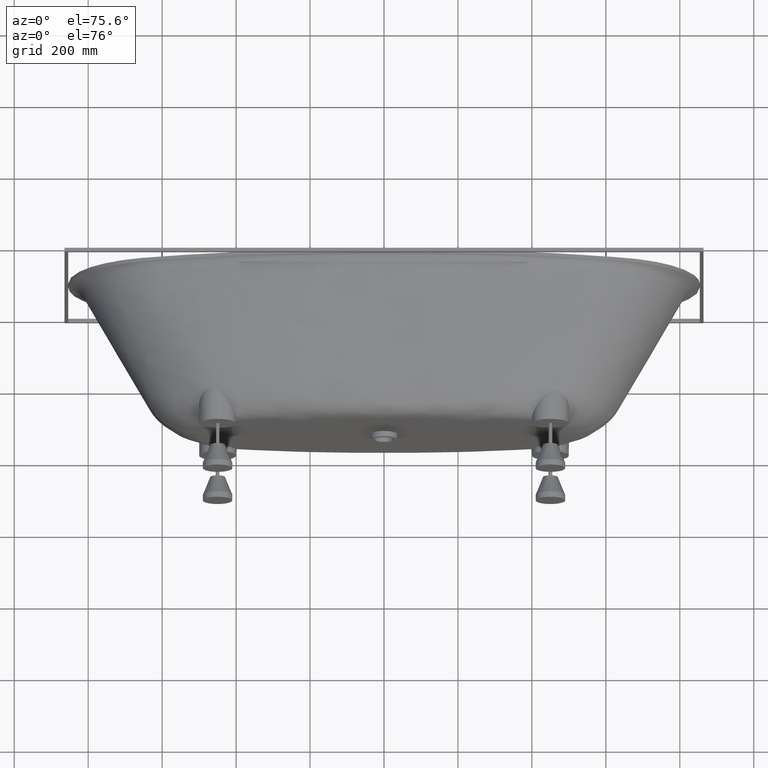
[diagram: clean part render]
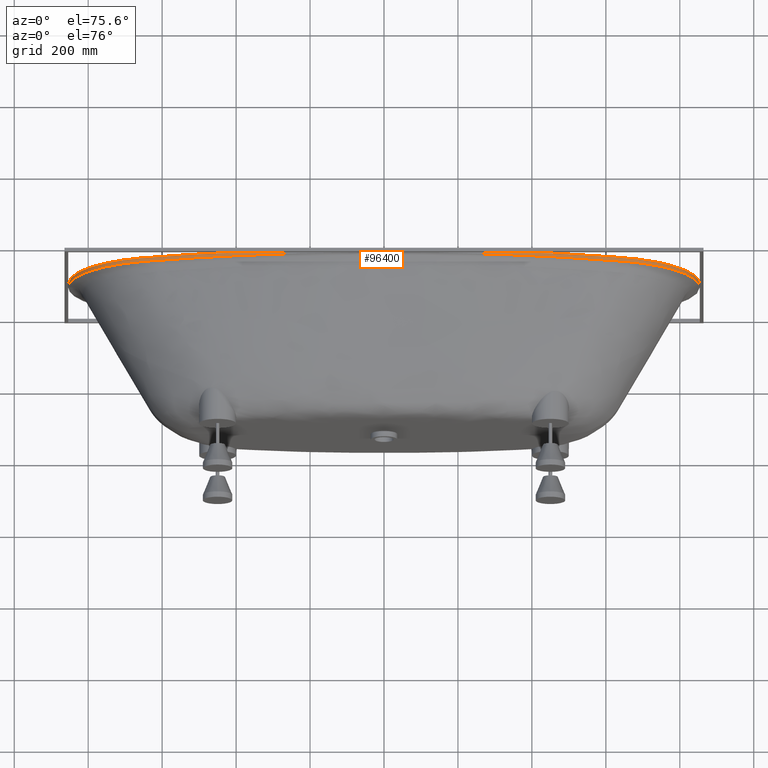
[diagram: same view with one face highlighted and labeled with its STEP entity id]
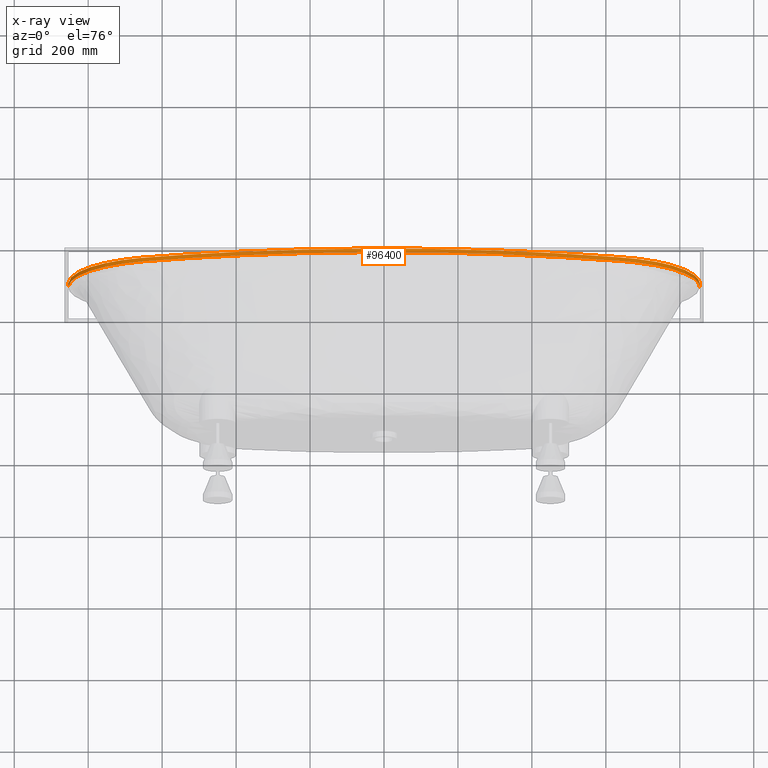
[diagram: x-ray of the same camera — body ghosted, the highlighted face saturated]
A machine part, auxiliary view. The second image highlights one B-rep face of the part: STEP entity #96400.
The next image is the same camera in x-ray: the body ghosted, the highlighted face saturated — about 0% of this face is hidden behind the body in this view.
In plain terms, the highlighted face is a freeform B-spline surface patch.
Its self-contained STEP definition (entity closure, byte-faithful):
#432 = CARTESIAN_POINT ( 'NONE',  ( -829.7678665111801593, -10.00000000000000178, 123.1756036885558672 ) ) ;
#1050 = CARTESIAN_POINT ( 'NONE',  ( -633.0025208500618419, 0.0000000000000000000, 287.8618600178022575 ) ) ;
#1668 = CARTESIAN_POINT ( 'NONE',  ( 638.4967132186570780, -10.00000000000000178, 286.1919980705547459 ) ) ;
#2276 = DIRECTION ( 'NONE',  ( -1.224646799147365533E-16, 1.000000000000000000, 0.0000000000000000000 ) ) ;
#2282 = CARTESIAN_POINT ( 'NONE',  ( 849.4592916242793308, 0.0000000000000000000, 63.27983597649888736 ) ) ;
#3675 = CARTESIAN_POINT ( 'NONE',  ( -853.9999999999996589, -10.00000000000000178, 1.283695372222837250E-13 ) ) ;
#3943 = EDGE_CURVE ( 'NONE', #59817, #64188, #13837, .T. ) ;
#4299 = CARTESIAN_POINT ( 'NONE',  ( -824.0133467514558561, -9.999999999999998224, 130.3186733665728241 ) ) ;
#4367 = CARTESIAN_POINT ( 'NONE',  ( 849.3192483419004475, -10.00000000000000355, 53.67561906219695089 ) ) ;
#4909 = CARTESIAN_POINT ( 'NONE',  ( -756.3328533345642199, -10.00000000000000178, 220.5006646839053701 ) ) ;
#4948 = EDGE_CURVE ( 'NONE', #54884, #120626, #36324, .T. ) ;
#5533 = CARTESIAN_POINT ( 'NONE',  ( -671.3405410933002031, -9.999999999999998224, 274.5823532284132966 ) ) ;
#5603 = CARTESIAN_POINT ( 'NONE',  ( -638.4967132186552590, 0.0000000000000000000, 286.1919980705559965 ) ) ;
#6155 = CARTESIAN_POINT ( 'NONE',  ( -551.3811023531291085, -10.00000000000000000, 311.2649073878256445 ) ) ;
#6224 = CARTESIAN_POINT ( 'NONE',  ( 829.7678665111789087, 0.0000000000000000000, 123.1756036885556966 ) ) ;
#6776 = CARTESIAN_POINT ( 'NONE',  ( -83.84258404370987705, -10.00000000000000000, 380.3089782417210358 ) ) ;
#7390 = CARTESIAN_POINT ( 'NONE',  ( 484.4366450638592596, -10.00000000000000178, 327.2009377068486629 ) ) ;
#8011 = CARTESIAN_POINT ( 'NONE',  ( 649.9452744862729787, -10.00000000000000178, 282.5973926800733693 ) ) ;
#8634 = CARTESIAN_POINT ( 'NONE',  ( 740.5908728704747546, -10.00000000000000178, 233.8703838492806710 ) ) ;
#9877 = CARTESIAN_POINT ( 'NONE',  ( -853.9999999999996589, 0.0000000000000000000, 21.21315664807787016 ) ) ;
#10487 = CARTESIAN_POINT ( 'NONE',  ( -638.4967132186552590, -10.00000000000000178, 286.1919980705559965 ) ) ;
#11101 = CARTESIAN_POINT ( 'NONE',  ( 533.5103789785432582, 0.0000000000000000000, 317.6734104676295374 ) ) ;
#11719 = CARTESIAN_POINT ( 'NONE',  ( 829.7678665111789087, -10.00000000000000178, 123.1756036885556966 ) ) ;
#13737 = CARTESIAN_POINT ( 'NONE',  ( -841.7249123074137742, -10.00000000000000000, 85.29871035570963045 ) ) ;
#13807 = CARTESIAN_POINT ( 'NONE',  ( 844.4757024791142612, -10.00000000000000178, 74.75688911045619989 ) ) ;
#13837 = B_SPLINE_CURVE_WITH_KNOTS ( 'NONE', 3,
 ( #3675, #42048, #80436, #118823, #32611, #70995, #109400, #23175, #61559, #99949, #13737, #52117, #90508, #4299, #42666, #81053, #119442, #33230, #71618, #110020, #23796, #62178, #100566, #14356, #52732, #91122, #4909, #43281, #81668, #120056, #33847, #72234, #110635, #24409, #62791, #101181, #14976, #53352, #91744, #5533, #43905, #82290, #120674, #34466, #72851, #111252, #25030, #63412, #101802, #15601, #53982, #92365, #6155, #44531, #82911, #121294, #35087, #73471, #111873, #25650, #64033, #102422, #16217, #54599, #92985, #6776, #45156, #83532, #121913, #35704, #74084, #112486, #26262, #64645, #103039, #16831, #55215, #93600, #7390, #45771, #84148, #122527, #36318, #74698, #113099, #26879, #65264, #103654, #17451, #55832, #94220, #8011, #46391, #84771, #123148, #36942, #75326, #113724, #27504, #65892, #104279, #18075, #56456, #94842, #8634, #47013, #85396, #123776, #37566, #75950, #114348, #28128, #42119, #80508, #118894, #32682, #71067, #109471, #23245, #61630, #100019, #13807, #52186, #90578, #4367, #42735, #81123, #119510, #33299, #71689, #110089, #23864, #62245, #100635, #14426, #52801, #91194 ),
 .UNSPECIFIED., .F., .F.,
 ( 4, 2, 2, 2, 2, 2, 2, 2, 2, 2, 2, 2, 2, 2, 2, 2, 2, 2, 2, 2, 2, 2, 2, 2, 2, 2, 2, 2, 2, 2, 2, 2, 2, 2, 2, 2, 2, 2, 2, 1, 2, 2, 2, 2, 2, 2, 2, 2, 2, 2, 2, 2, 2, 2, 2, 2, 2, 2, 2, 2, 2, 2, 2, 2, 2, 2, 1, 1, 2, 4 ),
 ( 2.060398323041897406, 2.092691653314469047, 2.108838318450755089, 2.116911651018897889, 2.124984983587040688, 2.157278313859612329, 2.189571644132183970, 2.205718309268469568, 2.213791641836612811, 2.221864974404755610, 2.254158304677326807, 2.286451634949898004, 2.302598300086183603, 2.310671632654326402, 2.314708298938398023, 2.318744965222469645, 2.351038295495042174, 2.383331625767614703, 2.399478290903901190, 2.407551623472043989, 2.411588289756115611, 2.415624956040187232, 2.431771621176473719, 2.435808287460544896, 2.439844953744616074, 2.447918286312758873, 2.577091607403034779, 2.706264928493310684, 2.770851589038449081, 2.803144919311018057, 2.819291584447302768, 2.835438249583587478, 2.964611570673864271, 3.093784891764141065, 3.222958212854418303, 3.352131533944695541, 3.481304855034972334, 3.545891515580111175, 3.562038180716395885, 3.578184845852680596, 3.610478176125250016, 3.675064836670388857, 3.707358166942958722, 3.739651497215528586, 3.747724829783670941, 3.751761496067741675, 3.755798162351812852, 3.771944827488096674, 3.804238157760664762, 3.836531488033232851, 3.840568154317304028, 3.844604820601374762, 3.852678153169517117, 3.868824818305801827, 3.901118148578371247, 3.933411478850940668, 3.949558143987224490, 3.965704809123509200, 3.997998139396078621, 4.030291469668647153, 4.046438134804931863, 4.054511467373074218, 4.062584799941216573, 4.094878130213785994, 4.111024795350069816, 4.119098127918212171, 4.123134794202282905, 4.125153127344319159, 4.126162293915337287, 4.127171460486354526 ),
 .UNSPECIFIED. ) ;
#14307 = ORIENTED_EDGE ( 'NONE', *, *, #113536, .T. ) ;
#14356 = CARTESIAN_POINT ( 'NONE',  ( -768.0861832508102225, -10.00000000000000355, 209.2830899371780617 ) ) ;
#14426 = CARTESIAN_POINT ( 'NONE',  ( 853.9994191610730923, -9.999999999999998224, 0.6785288951267411939 ) ) ;
#14976 = CARTESIAN_POINT ( 'NONE',  ( -684.9558156179605248, -9.999999999999998224, 268.5227673448515020 ) ) ;
#15046 = CARTESIAN_POINT ( 'NONE',  ( -754.5583896210019930, 0.0000000000000000000, 225.0596960864241680 ) ) ;
#15601 = CARTESIAN_POINT ( 'NONE',  ( -639.4290326399166133, -9.999999999999998224, 285.9009224156806113 ) ) ;
#15668 = CARTESIAN_POINT ( 'NONE',  ( 703.1205459587362157, 0.0000000000000000000, 261.5206814293603088 ) ) ;
#16217 = CARTESIAN_POINT ( 'NONE',  ( -260.3876478592120520, -10.00000000000000000, 365.9441531601618749 ) ) ;
#16831 = CARTESIAN_POINT ( 'NONE',  ( 452.7626882172202158, -10.00000000000000178, 334.1107029292886637 ) ) ;
#17451 = CARTESIAN_POINT ( 'NONE',  ( 644.8119053767234163, -10.00000000000000178, 284.2456470697084114 ) ) ;
#18075 = CARTESIAN_POINT ( 'NONE',  ( 728.6557804213141480, -10.00000000000000178, 242.7449870199710915 ) ) ;
#19318 = CARTESIAN_POINT ( 'NONE',  ( -853.9999999999996589, -10.00000000000000178, 1.283695372222837250E-13 ) ) ;
#19931 = CARTESIAN_POINT ( 'NONE',  ( -703.1205459587365567, 0.0000000000000000000, 261.5206814293602520 ) ) ;
#20544 = CARTESIAN_POINT ( 'NONE',  ( 325.7436218526086122, -10.00000000000000178, 364.9166080882957317 ) ) ;
#21155 = CARTESIAN_POINT ( 'NONE',  ( 754.5583896210017656, 0.0000000000000000000, 225.0596960864240259 ) ) ;
#23175 = CARTESIAN_POINT ( 'NONE',  ( -848.0995424238359419, -10.00000000000000000, 59.03803136739958290 ) ) ;
#23245 = CARTESIAN_POINT ( 'NONE',  ( 840.0076333387938803, -9.999999999999998224, 90.36987233122862051 ) ) ;
#23796 = CARTESIAN_POINT ( 'NONE',  ( -799.2920699685569161, -10.00000000000000000, 172.3291984780126427 ) ) ;
#23864 = CARTESIAN_POINT ( 'NONE',  ( 853.9675238974836020, -9.999999999999992895, 4.745982980801897178 ) ) ;
#24409 = CARTESIAN_POINT ( 'NONE',  ( -713.3406280748363315, -9.999999999999998224, 253.1462200110475180 ) ) ;
#24479 = CARTESIAN_POINT ( 'NONE',  ( -849.4592916242785350, 0.0000000000000000000, 63.27983597649887315 ) ) ;
#25030 = CARTESIAN_POINT ( 'NONE',  ( -647.1624038247722410, -10.00000000000000000, 283.5045739752084160 ) ) ;
#25100 = CARTESIAN_POINT ( 'NONE',  ( 633.0025208500653662, 0.0000000000000000000, 287.8618600178004385 ) ) ;
#25650 = CARTESIAN_POINT ( 'NONE',  ( -281.8265434747391964, -10.00000000000000000, 363.2651488897697618 ) ) ;
#26262 = CARTESIAN_POINT ( 'NONE',  ( 341.6607963928851177, -10.00000000000000000, 355.0664542585470258 ) ) ;
#26879 = CARTESIAN_POINT ( 'NONE',  ( 625.4338877853028862, -9.999999999999998224, 290.1564555613608150 ) ) ;
#27504 = CARTESIAN_POINT ( 'NONE',  ( 724.2073642737053660, -10.00000000000000178, 245.8427029282525211 ) ) ;
#28128 = CARTESIAN_POINT ( 'NONE',  ( 799.4451587810817728, -10.00000000000000000, 171.8602567670703820 ) ) ;
#29363 = CARTESIAN_POINT ( 'NONE',  ( -754.5583896210019930, -10.00000000000000178, 225.0596960864241680 ) ) ;
#29980 = CARTESIAN_POINT ( 'NONE',  ( -325.7436218525513709, 0.0000000000000000000, 364.9166080883087488 ) ) ;
#30595 = CARTESIAN_POINT ( 'NONE',  ( 703.1205459587362157, -10.00000000000000178, 261.5206814293603088 ) ) ;
#31216 = CARTESIAN_POINT ( 'NONE',  ( 853.9999999999996589, 0.0000000000000000000, -1.934617396837090553E-09 ) ) ;
#32611 = CARTESIAN_POINT ( 'NONE',  ( -850.9324942620125967, -9.999999999999998224, 42.96241296124743769 ) ) ;
#32682 = CARTESIAN_POINT ( 'NONE',  ( 821.8323144676802485, -10.00000000000000000, 135.0207721661344067 ) ) ;
#33230 = CARTESIAN_POINT ( 'NONE',  ( -813.7670124778971967, -9.999999999999996447, 149.4690707817394468 ) ) ;
#33299 = CARTESIAN_POINT ( 'NONE',  ( 853.7041605385685443, -10.00000000000000178, 13.53336921258398640 ) ) ;
#33847 = CARTESIAN_POINT ( 'NONE',  ( -749.1703386015147998, -9.999999999999998224, 226.7835679884339299 ) ) ;
#34466 = CARTESIAN_POINT ( 'NONE',  ( -659.9651071133356481, -9.999999999999998224, 279.1266333475191459 ) ) ;
#34535 = CARTESIAN_POINT ( 'NONE',  ( 2.945560462208618446E-11, 0.0000000000000000000, 390.4631608273694496 ) ) ;
#35087 = CARTESIAN_POINT ( 'NONE',  ( -340.6086976527491856, -10.00000000000000178, 354.9121132114630655 ) ) ;
#35704 = CARTESIAN_POINT ( 'NONE',  ( 171.8724824305076311, -9.999999999999998224, 375.1486384866952903 ) ) ;
#36318 = CARTESIAN_POINT ( 'NONE',  ( 583.9072380448220656, -10.00000000000000178, 302.1089015251812384 ) ) ;
#36324 = B_SPLINE_CURVE_WITH_KNOTS ( 'NONE', 3,
 ( #72304, #110705, #24479, #62861, #101252, #15046, #53424, #91814, #5603, #43975, #82360, #120743, #34535, #72921, #111322, #25100, #63481, #101872, #15668, #54049, #92433, #6224, #44600, #82980, #121363 ),
 .UNSPECIFIED., .F., .F.,
 ( 4, 1, 1, 1, 1, 1, 2, 2, 1, 1, 1, 2, 2, 1, 1, 1, 1, 1, 4 ),
 ( 0.0000000000000000000, 0.01529185306278569960, 0.03058370612557151022, 0.04587555918835720808, 0.06116741225114290942, 0.07645926531392872871, 0.09175111837671441617, 0.09589180484448930897, 0.1666666666662021123, 0.2499999999993222088, 0.3333333333324042247, 0.4041081951541169448, 0.4082488816218904915, 0.4235407346846762899, 0.4388325877474620884, 0.4541244408102478869, 0.4694162938730337409, 0.4847081469358195394, 0.5000000000000000000 ),
 .UNSPECIFIED. ) ;
#36942 = CARTESIAN_POINT ( 'NONE',  ( 685.9946358813502911, -9.999999999999996447, 268.1811436084052502 ) ) ;
#37566 = CARTESIAN_POINT ( 'NONE',  ( 779.5389223067296598, -10.00000000000000178, 197.2357209315200066 ) ) ;
#38801 = CARTESIAN_POINT ( 'NONE',  ( -829.7678665111801593, 0.0000000000000000000, 123.1756036885558672 ) ) ;
#39419 = CARTESIAN_POINT ( 'NONE',  ( -533.5103789785392792, -10.00000000000000178, 317.6734104676332890 ) ) ;
#39580 = VECTOR ( 'NONE', #2276, 1000.000000000000000 ) ;
#39863 = LINE ( 'NONE', #78249, #65150 ) ;
#40040 = CARTESIAN_POINT ( 'NONE',  ( 638.4967132186570780, 0.0000000000000000000, 286.1919980705547459 ) ) ;
#40652 = CARTESIAN_POINT ( 'NONE',  ( 853.9999999999996589, -10.00000000000000178, 21.21315664807781332 ) ) ;
#42048 = CARTESIAN_POINT ( 'NONE',  ( -853.9999999999997726, -10.00000000000000000, 10.74727948226309415 ) ) ;
#42119 = CARTESIAN_POINT ( 'NONE',  ( 805.5463683824291365, -10.00000000000000178, 162.8811076265967301 ) ) ;
#42666 = CARTESIAN_POINT ( 'NONE',  ( -821.6008297147900521, -9.999999999999996447, 135.1605731357335287 ) ) ;
#42735 = CARTESIAN_POINT ( 'NONE',  ( 851.0666372708014933, -9.999999999999998224, 43.04669773454568116 ) ) ;
#43281 = CARTESIAN_POINT ( 'NONE',  ( -753.2855915612341278, -9.999999999999998224, 223.2163596343496863 ) ) ;
#43905 = CARTESIAN_POINT ( 'NONE',  ( -670.0854544927424286, -10.00000000000000000, 275.1049432799323426 ) ) ;
#43975 = CARTESIAN_POINT ( 'NONE',  ( -633.0025208500618419, 0.0000000000000000000, 287.8618600178022575 ) ) ;
#44481 = ORIENTED_EDGE ( 'NONE', *, *, #3943, .T. ) ;
#44531 = CARTESIAN_POINT ( 'NONE',  ( -467.6575623133280715, -10.00000000000000178, 331.3304095459856171 ) ) ;
#44600 = CARTESIAN_POINT ( 'NONE',  ( 849.4592916236811107, 0.0000000000000000000, 63.27983597831833862 ) ) ;
#45156 = CARTESIAN_POINT ( 'NONE',  ( -41.13747530665387586, -10.00000000000000178, 381.5262983082679966 ) ) ;
#45741 = CARTESIAN_POINT ( 'NONE',  ( 853.9999999999996589, -10.00000000000000178, -1.934617396837090553E-09 ) ) ;
#45771 = CARTESIAN_POINT ( 'NONE',  ( 500.2181831901282294, -10.00000000000000000, 323.5327183394747408 ) ) ;
#46391 = CARTESIAN_POINT ( 'NONE',  ( 656.3217012839797917, -10.00000000000000355, 280.4519761058360814 ) ) ;
#47013 = CARTESIAN_POINT ( 'NONE',  ( 744.7856955985917011, -10.00000000000000000, 230.5009442620701918 ) ) ;
#48253 = CARTESIAN_POINT ( 'NONE',  ( -849.4592916242785350, -10.00000000000000178, 63.27983597649887315 ) ) ;
#48865 = CARTESIAN_POINT ( 'NONE',  ( -638.4967132186552590, 0.0000000000000000000, 286.1919980705559965 ) ) ;
#49482 = CARTESIAN_POINT ( 'NONE',  ( 633.0025208500653662, -10.00000000000000178, 287.8618600178004385 ) ) ;
#50092 = LINE ( 'NONE', #88479, #39580 ) ;
#50098 = CARTESIAN_POINT ( 'NONE',  ( 829.7678665111789087, 0.0000000000000000000, 123.1756036885556966 ) ) ;
#52117 = CARTESIAN_POINT ( 'NONE',  ( -834.8308920399483668, -9.999999999999996447, 105.6601904695810958 ) ) ;
#52186 = CARTESIAN_POINT ( 'NONE',  ( 845.7876133025281433, -9.999999999999998224, 69.49979710059122340 ) ) ;
#52732 = CARTESIAN_POINT ( 'NONE',  ( -764.2549532189907495, -9.999999999999998224, 213.0927545240592167 ) ) ;
#52801 = CARTESIAN_POINT ( 'NONE',  ( 853.9999999999998863, -10.00000000000000000, 0.3408493502669695530 ) ) ;
#53352 = CARTESIAN_POINT ( 'NONE',  ( -677.5718128982713324, -10.00000000000000000, 271.8973530439395745 ) ) ;
#53424 = CARTESIAN_POINT ( 'NONE',  ( -703.1205459587365567, 0.0000000000000000000, 261.5206814293602520 ) ) ;
#53982 = CARTESIAN_POINT ( 'NONE',  ( -636.8487016711592332, -9.999999999999998224, 286.6883931980818829 ) ) ;
#54049 = CARTESIAN_POINT ( 'NONE',  ( 754.5583896210017656, 0.0000000000000000000, 225.0596960864240259 ) ) ;
#54599 = CARTESIAN_POINT ( 'NONE',  ( -212.1667908474715603, -10.00000000000000000, 371.6073419275185188 ) ) ;
#54884 = VERTEX_POINT ( 'NONE', #109992 ) ;
#55215 = CARTESIAN_POINT ( 'NONE',  ( 458.0491151909524206, -10.00000000000000000, 332.9848105262101967 ) ) ;
#55832 = CARTESIAN_POINT ( 'NONE',  ( 646.0997091780611754, -10.00000000000000178, 283.8430081528586015 ) ) ;
#56456 = CARTESIAN_POINT ( 'NONE',  ( 731.9619593076448609, -10.00000000000000000, 240.3747728816944971 ) ) ;
#57701 = CARTESIAN_POINT ( 'NONE',  ( -853.9999999999996589, 0.0000000000000000000, 1.283695372222837250E-13 ) ) ;
#58314 = CARTESIAN_POINT ( 'NONE',  ( -664.2578522612795950, -10.00000000000000178, 278.2513293800892598 ) ) ;
#58927 = CARTESIAN_POINT ( 'NONE',  ( 325.7436218526086122, 0.0000000000000000000, 364.9166080882957317 ) ) ;
#59543 = CARTESIAN_POINT ( 'NONE',  ( 797.6326627742025721, -10.00000000000000178, 178.1551873925927794 ) ) ;
#59817 = VERTEX_POINT ( 'NONE', #120646 ) ;
#61559 = CARTESIAN_POINT ( 'NONE',  ( -847.5494500057894811, -10.00000000000000178, 61.69560669280378562 ) ) ;
#61630 = CARTESIAN_POINT ( 'NONE',  ( 841.5991003008831512, -10.00000000000000178, 85.21288814004309131 ) ) ;
#62178 = CARTESIAN_POINT ( 'NONE',  ( -786.2259921907418629, -9.999999999999996447, 189.4071826295178766 ) ) ;
#62245 = CARTESIAN_POINT ( 'NONE',  ( 853.9918746734495016, -10.00000000000000711, 2.374053558632163607 ) ) ;
#62791 = CARTESIAN_POINT ( 'NONE',  ( -704.1073503438889247, -9.999999999999996447, 258.6442551674305150 ) ) ;
#62861 = CARTESIAN_POINT ( 'NONE',  ( -829.7678665111801593, 0.0000000000000000000, 123.1756036885558672 ) ) ;
#63412 = CARTESIAN_POINT ( 'NONE',  ( -644.5876810577200331, -9.999999999999996447, 284.3170155543264741 ) ) ;
#63481 = CARTESIAN_POINT ( 'NONE',  ( 638.4967132186570780, 0.0000000000000000000, 286.1919980705547459 ) ) ;
#64033 = CARTESIAN_POINT ( 'NONE',  ( -276.4654515950173277, -10.00000000000000000, 363.9552579222002464 ) ) ;
#64188 = VERTEX_POINT ( 'NONE', #45741 ) ;
#64645 = CARTESIAN_POINT ( 'NONE',  ( 405.1741887442582879, -10.00000000000000000, 343.7347206937980673 ) ) ;
#65150 = VECTOR ( 'NONE', #116638, 1000.000000000000000 ) ;
#65264 = CARTESIAN_POINT ( 'NONE',  ( 638.3583368931533641, -10.00000000000000355, 286.2281068258150185 ) ) ;
#65892 = CARTESIAN_POINT ( 'NONE',  ( 725.3232672234460097, -10.00000000000000178, 245.0769345892611284 ) ) ;
#67751 = CARTESIAN_POINT ( 'NONE',  ( -754.5583896210019930, 0.0000000000000000000, 225.0596960864241680 ) ) ;
#68364 = CARTESIAN_POINT ( 'NONE',  ( 2.945682926888533247E-11, -10.00000000000000178, 390.4631608273694496 ) ) ;
#68974 = CARTESIAN_POINT ( 'NONE',  ( 703.1205459587362157, 0.0000000000000000000, 261.5206814293603088 ) ) ;
#70995 = CARTESIAN_POINT ( 'NONE',  ( -849.6085776334343791, -10.00000000000000000, 51.01134687292591252 ) ) ;
#71067 = CARTESIAN_POINT ( 'NONE',  ( 830.8485958762900054, -10.00000000000000000, 115.6051345158624883 ) ) ;
#71618 = CARTESIAN_POINT ( 'NONE',  ( -812.3916339626870240, -9.999999999999998224, 151.8138058139543318 ) ) ;
#71689 = CARTESIAN_POINT ( 'NONE',  ( 853.8149138029896221, -10.00000000000000178, 10.83344861679834104 ) ) ;
#72234 = CARTESIAN_POINT ( 'NONE',  ( -739.8221635587791525, -9.999999999999998224, 234.6644361006115957 ) ) ;
#72304 = CARTESIAN_POINT ( 'NONE',  ( -853.9999999999996589, 0.0000000000000000000, 1.283695372222837250E-13 ) ) ;
#72851 = CARTESIAN_POINT ( 'NONE',  ( -654.8642986333335330, -10.00000000000000000, 280.9680754054962790 ) ) ;
#72921 = CARTESIAN_POINT ( 'NONE',  ( 325.7436218526086122, 0.0000000000000000000, 364.9166080882957317 ) ) ;
#73471 = CARTESIAN_POINT ( 'NONE',  ( -308.5840594971748487, -10.00000000000000000, 359.6390921779678251 ) ) ;
#74084 = CARTESIAN_POINT ( 'NONE',  ( 214.3714756702194961, -9.999999999999998224, 371.3831284546095617 ) ) ;
#74698 = CARTESIAN_POINT ( 'NONE',  ( 594.3084851887390414, -10.00000000000000000, 299.1984612454744479 ) ) ;
#75326 = CARTESIAN_POINT ( 'NONE',  ( 704.9141660572055343, -9.999999999999998224, 258.1787690387385510 ) ) ;
#75714 = CARTESIAN_POINT ( 'NONE',  ( 853.9999999999994316, 0.0000000000000000000, 3.864639058760332494E-09 ) ) ;
#75950 = CARTESIAN_POINT ( 'NONE',  ( 786.4901662907547006, -10.00000000000000178, 189.0871638427280743 ) ) ;
#77187 = CARTESIAN_POINT ( 'NONE',  ( -797.6326627742022310, -10.00000000000000178, 178.1551873925926941 ) ) ;
#77254 = EDGE_CURVE ( 'NONE', #59817, #54884, #39863, .T. ) ;
#77808 = CARTESIAN_POINT ( 'NONE',  ( -533.5103789785392792, 0.0000000000000000000, 317.6734104676332890 ) ) ;
#78249 = CARTESIAN_POINT ( 'NONE',  ( -853.9999999999996589, 0.0000000000000000000, 1.283695372222837250E-13 ) ) ;
#78427 = CARTESIAN_POINT ( 'NONE',  ( 664.2578522612798224, -10.00000000000000178, 278.2513293800891461 ) ) ;
#79041 = CARTESIAN_POINT ( 'NONE',  ( 853.9999999999996589, 0.0000000000000000000, 21.21315664807781332 ) ) ;
#80436 = CARTESIAN_POINT ( 'NONE',  ( -853.4189606714895717, -10.00000000000000178, 21.48950057576099226 ) ) ;
#80508 = CARTESIAN_POINT ( 'NONE',  ( 808.4599664587943835, -9.999999999999998224, 158.3288661831416277 ) ) ;
#81053 = CARTESIAN_POINT ( 'NONE',  ( -817.7716152770254894, -9.999999999999994671, 142.3475346974515787 ) ) ;
#81123 = CARTESIAN_POINT ( 'NONE',  ( 852.8219248747454913, -10.00000000000000000, 26.98997095795012413 ) ) ;
#81668 = CARTESIAN_POINT ( 'NONE',  ( -752.2616948132892958, -9.999999999999998224, 224.1163098947925221 ) ) ;
#82290 = CARTESIAN_POINT ( 'NONE',  ( -667.5654010582785531, -9.999999999999996447, 276.1340035736012624 ) ) ;
#82360 = CARTESIAN_POINT ( 'NONE',  ( -533.5103789785392792, 0.0000000000000000000, 317.6734104676332890 ) ) ;
#82911 = CARTESIAN_POINT ( 'NONE',  ( -425.5173559523244649, -10.00000000000000178, 340.1234089832126983 ) ) ;
#82980 = CARTESIAN_POINT ( 'NONE',  ( 853.9999999995859525, 0.0000000000000000000, 21.21315665191137256 ) ) ;
#83532 = CARTESIAN_POINT ( 'NONE',  ( 44.16958632761782155, -10.00000000000000000, 381.4671520437435674 ) ) ;
#84148 = CARTESIAN_POINT ( 'NONE',  ( 531.7213551888759184, -9.999999999999998224, 315.9637405721762207 ) ) ;
#84771 = CARTESIAN_POINT ( 'NONE',  ( 661.3599528870784070, -10.00000000000000355, 278.6027921406223982 ) ) ;
#85396 = CARTESIAN_POINT ( 'NONE',  ( 757.0574942371309817, -10.00000000000000000, 220.0861996786205168 ) ) ;
#86637 = CARTESIAN_POINT ( 'NONE',  ( -849.4592916242785350, 0.0000000000000000000, 63.27983597649887315 ) ) ;
#86787 = ORIENTED_EDGE ( 'NONE', *, *, #77254, .F. ) ;
#87256 = CARTESIAN_POINT ( 'NONE',  ( -633.0025208500618419, -10.00000000000000178, 287.8618600178022575 ) ) ;
#87872 = CARTESIAN_POINT ( 'NONE',  ( 633.0025208500653662, 0.0000000000000000000, 287.8618600178004385 ) ) ;
#88479 = CARTESIAN_POINT ( 'NONE',  ( 853.9999999999994316, 0.0000000000000000000, 3.864639058760332494E-09 ) ) ;
#88485 = CARTESIAN_POINT ( 'NONE',  ( 849.4592916242793308, -10.00000000000000178, 63.27983597649888736 ) ) ;
#89892 = EDGE_LOOP ( 'NONE', ( #44481, #14307, #100572, #86787 ) ) ;
#90508 = CARTESIAN_POINT ( 'NONE',  ( -830.8358623743714588, -9.999999999999998224, 115.6433047070083830 ) ) ;
#90578 = CARTESIAN_POINT ( 'NONE',  ( 846.4066663849027918, -10.00000000000000000, 66.86642006432325047 ) ) ;
#91122 = CARTESIAN_POINT ( 'NONE',  ( -758.3350328358919796, -10.00000000000000178, 218.6663199531649298 ) ) ;
#91194 = CARTESIAN_POINT ( 'NONE',  ( 853.9999999999996589, -10.00000000000000178, -1.934617396837090553E-09 ) ) ;
#91744 = CARTESIAN_POINT ( 'NONE',  ( -675.0910794763711920, -10.00000000000000000, 272.9905647685060330 ) ) ;
#91814 = CARTESIAN_POINT ( 'NONE',  ( -664.2578522612795950, 0.0000000000000000000, 278.2513293800892598 ) ) ;
#92365 = CARTESIAN_POINT ( 'NONE',  ( -592.9644334089008453, -10.00000000000000000, 299.9923929877371620 ) ) ;
#92433 = CARTESIAN_POINT ( 'NONE',  ( 797.6326627742025721, 0.0000000000000000000, 178.1551873925927794 ) ) ;
#92985 = CARTESIAN_POINT ( 'NONE',  ( -169.3572433523311815, -10.00000000000000000, 375.3494628651513949 ) ) ;
#93600 = CARTESIAN_POINT ( 'NONE',  ( 468.6101292599778958, -9.999999999999998224, 330.6945606978947581 ) ) ;
#94220 = CARTESIAN_POINT ( 'NONE',  ( 648.6660557148705948, -10.00000000000000000, 283.0181669169690508 ) ) ;
#94842 = CARTESIAN_POINT ( 'NONE',  ( 734.1391353720958932, -9.999999999999998224, 238.7682249605896345 ) ) ;
#96085 = CARTESIAN_POINT ( 'NONE',  ( -853.9999999999996589, -10.00000000000000178, 21.21315664807787016 ) ) ;
#96400 = ADVANCED_FACE ( 'NONE', ( #105525 ), #105563, .F. ) ;
#96700 = CARTESIAN_POINT ( 'NONE',  ( -664.2578522612795950, 0.0000000000000000000, 278.2513293800892598 ) ) ;
#97315 = CARTESIAN_POINT ( 'NONE',  ( 533.5103789785432582, -10.00000000000000178, 317.6734104676295374 ) ) ;
#97933 = CARTESIAN_POINT ( 'NONE',  ( 797.6326627742025721, 0.0000000000000000000, 178.1551873925927794 ) ) ;
#99949 = CARTESIAN_POINT ( 'NONE',  ( -844.6240160239602801, -9.999999999999998224, 74.92038527047013474 ) ) ;
#100019 = CARTESIAN_POINT ( 'NONE',  ( 843.7818672495203600, -10.00000000000000178, 77.38390397658379527 ) ) ;
#100566 = CARTESIAN_POINT ( 'NONE',  ( -779.2405689664824422, -10.00000000000000000, 197.5778080587325007 ) ) ;
#100572 = ORIENTED_EDGE ( 'NONE', *, *, #4948, .F. ) ;
#100635 = CARTESIAN_POINT ( 'NONE',  ( 853.9970974126350711, -9.999999999999998224, 1.356829882770397511 ) ) ;
#101181 = CARTESIAN_POINT ( 'NONE',  ( -689.8009334833419643, -10.00000000000000178, 266.1465180802561576 ) ) ;
#101252 = CARTESIAN_POINT ( 'NONE',  ( -797.6326627742022310, 0.0000000000000000000, 178.1551873925926941 ) ) ;
#101802 = CARTESIAN_POINT ( 'NONE',  ( -643.2978829301952146, -10.00000000000000000, 284.7123866201694113 ) ) ;
#101872 = CARTESIAN_POINT ( 'NONE',  ( 664.2578522612798224, 0.0000000000000000000, 278.2513293800891461 ) ) ;
#102422 = CARTESIAN_POINT ( 'NONE',  ( -265.7463565838324371, -10.00000000000000178, 365.2947064014854845 ) ) ;
#103039 = CARTESIAN_POINT ( 'NONE',  ( 426.3320849126496910, -10.00000000000000000, 339.6375301186232036 ) ) ;
#103654 = CARTESIAN_POINT ( 'NONE',  ( 640.9410613388973843, -10.00000000000000000, 285.4378628624333487 ) ) ;
#104279 = CARTESIAN_POINT ( 'NONE',  ( 727.5470269825532341, -10.00000000000000000, 243.5284009605513802 ) ) ;
#105525 = FACE_OUTER_BOUND ( 'NONE', #89892, .T. ) ;
#105563 = B_SPLINE_SURFACE_WITH_KNOTS ( 'NONE', 3, 1, ( 
 ( #19318, #57701 ),
 ( #96085, #9877 ),
 ( #48253, #86637 ),
 ( #432, #38801 ),
 ( #77187, #115583 ),
 ( #29363, #67751 ),
 ( #106145, #19931 ),
 ( #58314, #96700 ),
 ( #10487, #48865 ),
 ( #87256, #1050 ),
 ( #39419, #77808 ),
 ( #116199, #29980 ),
 ( #68364, #106761 ),
 ( #20544, #58927 ),
 ( #97315, #11101 ),
 ( #49482, #87872 ),
 ( #1668, #40040 ),
 ( #78427, #116814 ),
 ( #30595, #68974 ),
 ( #107377, #21155 ),
 ( #59543, #97933 ),
 ( #11719, #50098 ),
 ( #88485, #2282 ),
 ( #40652, #79041 ),
 ( #117430, #31216 ) ),
 .UNSPECIFIED., .F., .F., .F.,
 ( 4, 1, 1, 1, 1, 1, 2, 2, 1, 1, 1, 2, 2, 1, 1, 1, 1, 1, 4 ),
 ( 2, 2 ),
 ( 0.0000000000000000000, 0.01529185306282832002, 0.03058370612565675106, 0.04587555918848507108, 0.06116741225131339110, 0.07645926531414182215, 0.09175111837697014217, 0.09589180484475656741, 0.1666666666666666297, 0.2500000000000189848, 0.3333333333333332593, 0.4041081951552432106, 0.4082488816230283035, 0.4235407346858567346, 0.4388325877486851656, 0.4541244408115135966, 0.4694162938743420277, 0.4847081469371704587, 0.5000000000013935519 ),
 ( 0.0000000000000000000, 1.000000000000000000 ),
 .UNSPECIFIED. ) ;
#106145 = CARTESIAN_POINT ( 'NONE',  ( -703.1205459587365567, -10.00000000000000178, 261.5206814293602520 ) ) ;
#106761 = CARTESIAN_POINT ( 'NONE',  ( 2.945560462208618446E-11, 0.0000000000000000000, 390.4631608273694496 ) ) ;
#107377 = CARTESIAN_POINT ( 'NONE',  ( 754.5583896210017656, -10.00000000000000178, 225.0596960864240259 ) ) ;
#109400 = CARTESIAN_POINT ( 'NONE',  ( -849.1289176448603939, -10.00000000000000000, 53.69734548035610544 ) ) ;
#109471 = CARTESIAN_POINT ( 'NONE',  ( 834.8323671114085300, -10.00000000000000000, 105.6574691050159629 ) ) ;
#109992 = CARTESIAN_POINT ( 'NONE',  ( -853.9999999999996589, 0.0000000000000000000, 1.283695372222837250E-13 ) ) ;
#110020 = CARTESIAN_POINT ( 'NONE',  ( -805.3701964483769871, -9.999999999999998224, 163.4197812007022890 ) ) ;
#110089 = CARTESIAN_POINT ( 'NONE',  ( 853.9258535404288750, -10.00000000000000178, 6.776342558929323800 ) ) ;
#110635 = CARTESIAN_POINT ( 'NONE',  ( -731.1980790111356328, -10.00000000000000000, 241.1563828010997952 ) ) ;
#110705 = CARTESIAN_POINT ( 'NONE',  ( -853.9999999999996589, 0.0000000000000000000, 21.21315664807787016 ) ) ;
#111252 = CARTESIAN_POINT ( 'NONE',  ( -648.4477435728591672, -9.999999999999998224, 283.0893517534182138 ) ) ;
#111322 = CARTESIAN_POINT ( 'NONE',  ( 533.5103789785432582, 0.0000000000000000000, 317.6734104676295374 ) ) ;
#111873 = CARTESIAN_POINT ( 'NONE',  ( -297.8916244945392009, -10.00000000000000178, 361.1365845746133232 ) ) ;
#112486 = CARTESIAN_POINT ( 'NONE',  ( 299.2656316438780664, -10.00000000000000178, 361.3420119835435571 ) ) ;
#113099 = CARTESIAN_POINT ( 'NONE',  ( 615.0710234942397392, -10.00000000000000000, 293.2224777528226696 ) ) ;
#113536 = EDGE_CURVE ( 'NONE', #64188, #120626, #50092, .T. ) ;
#113724 = CARTESIAN_POINT ( 'NONE',  ( 714.1282815218687574, -10.00000000000000178, 252.6586628252528897 ) ) ;
#114348 = CARTESIAN_POINT ( 'NONE',  ( 796.2855494888822250, -10.00000000000000178, 176.2454555633955238 ) ) ;
#115583 = CARTESIAN_POINT ( 'NONE',  ( -797.6326627742022310, 0.0000000000000000000, 178.1551873925926941 ) ) ;
#116199 = CARTESIAN_POINT ( 'NONE',  ( -325.7436218525513709, -10.00000000000000178, 364.9166080883087488 ) ) ;
#116638 = DIRECTION ( 'NONE',  ( -1.224646799147365533E-16, 1.000000000000000000, 0.0000000000000000000 ) ) ;
#116814 = CARTESIAN_POINT ( 'NONE',  ( 664.2578522612798224, 0.0000000000000000000, 278.2513293800891461 ) ) ;
#117430 = CARTESIAN_POINT ( 'NONE',  ( 853.9999999999996589, -10.00000000000000178, -1.934617396837090553E-09 ) ) ;
#118823 = CARTESIAN_POINT ( 'NONE',  ( -851.6646870532035791, -10.00000000000000000, 37.59514751460311999 ) ) ;
#118894 = CARTESIAN_POINT ( 'NONE',  ( 816.8015936256501845, -9.999999999999998224, 144.4895628457363159 ) ) ;
#119442 = CARTESIAN_POINT ( 'NONE',  ( -816.4592810685410313, -9.999999999999998224, 144.7319748630563367 ) ) ;
#119510 = CARTESIAN_POINT ( 'NONE',  ( 853.2623836259857626, -10.00000000000000178, 21.61879367639529548 ) ) ;
#120056 = CARTESIAN_POINT ( 'NONE',  ( -750.2040965105926489, -9.999999999999996447, 225.8998755025264984 ) ) ;
#120626 = VERTEX_POINT ( 'NONE', #75714 ) ;
#120646 = CARTESIAN_POINT ( 'NONE',  ( -853.9999999999996589, -10.00000000000000178, 1.283695372222837250E-13 ) ) ;
#120674 = CARTESIAN_POINT ( 'NONE',  ( -666.2997687764616330, -9.999999999999996447, 276.6407225793300313 ) ) ;
#120743 = CARTESIAN_POINT ( 'NONE',  ( -325.7436218525513709, 0.0000000000000000000, 364.9166080883087488 ) ) ;
#121294 = CARTESIAN_POINT ( 'NONE',  ( -361.8882454586600375, -10.00000000000000000, 351.4481760929734833 ) ) ;
#121363 = CARTESIAN_POINT ( 'NONE',  ( 853.9999999999994316, 0.0000000000000000000, 3.864639058760332494E-09 ) ) ;
#121913 = CARTESIAN_POINT ( 'NONE',  ( 86.77153793244271185, -9.999999999999998224, 380.1906544692494663 ) ) ;
#122527 = CARTESIAN_POINT ( 'NONE',  ( 552.6436100452646087, -10.00000000000000000, 310.6077519859972540 ) ) ;
#123148 = CARTESIAN_POINT ( 'NONE',  ( 676.2889992206445413, -10.00000000000000178, 272.6629431106055108 ) ) ;
#123776 = CARTESIAN_POINT ( 'NONE',  ( 764.8226773433195831, -9.999999999999998224, 212.7353280944150242 ) ) ;